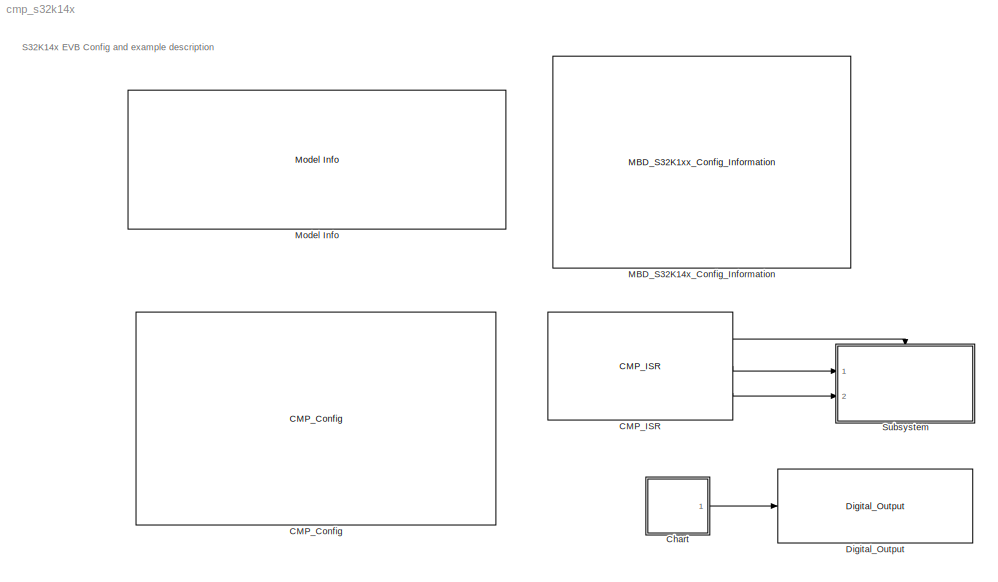
MODEL cmp_s32k14x
KIND model
CONFIG InitFcn = mbd_s32k_consistency_checks(bdroot(gcs));
BLOCK [Reference] CMP_Config  REF=mbd_s32k1xx_ec_toolbox/Motor Control Blocks/CMP Blocks/CMP_Config
  Ports = []
  Priority = 1
  SID = 2
  SourceBlock = mbd_s32k1xx_ec_toolbox/Motor Control Blocks/CMP Blocks/CMP_Config
  SourceType = cmp_s32k_config
  chn0 = off
  chn1 = off
  chn2 = off
  chn3 = off
  chn4 = off
  chn5 = off
  chn6 = off
  chn7 = off
  cos = Set CMPO to equal COUTA (unfiltered)
  dacen = on
  filter_cnt = Disabled
  fpr = 0
  fxmp = The Plus port is fixed
  fxmxch = Channel 0
  hystctr = level 0
  innsel = IN0, from the 8-bit DAC output
  inpsel = IN1, from the analog 8-1 mux
  instance = 0
  invt = off
  mcuTargetUpdate = on
  mode = Continuous
  msel = PTE8: [CMP0_IN3 | Comparator Input Signal]
  nsam = as soon as the active channel is scanned
  offset = level 0
  ope = PTE3: [CMP0_OUT | Comparator Output trigger]
  pmode = Low Speed
  psel = PTD7: [CMP0_IN6 | Comparator Input Signal]
  rre = off
  vosel = 128
  vrsel = Vin1
BLOCK [Reference] CMP_ISR  REF=mbd_s32k1xx_ec_toolbox/Motor Control Blocks/CMP Blocks/CMP_ISR
  Ports = [0, 3]
  SID = 4
  SourceBlock = mbd_s32k1xx_ec_toolbox/Motor Control Blocks/CMP Blocks/CMP_ISR
  SourceType = cmp_s32k_isr
  ief = off
  ier = on
  instance = 0
  prio = 1
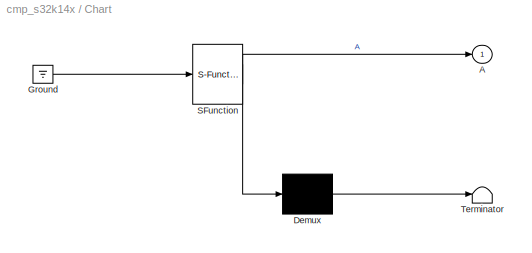
BLOCK [SubSystem] Chart
  ErrorFcn = Stateflow.Translate.translate
  PermitHierarchicalResolution = ExplicitOnly
  Ports = [0, 1]
  RequestExecContextInheritance = off
  SFBlockType = Chart
  SID = 34
  TreatAsAtomicUnit = on
  Variant = off
BLOCK [Outport] Chart/ A
  IconDisplay = Port number
  SID = 34::6
BLOCK [Demux] Chart/ Demux 
  Outputs = 1
  Ports = [1, 1]
  SID = 34::36
BLOCK [Ground] Chart/ Ground 
  SID = 34::38
BLOCK [S-Function] Chart/ SFunction 
  EnableBusSupport = on
  FunctionName = sf_sfun
  PortCounts = [1 2]
  Ports = [1, 2]
  SFcnIsStateOwnerBlock = off
  SFunctionDeploymentMode = off
  SID = 34::35
  Tag = Stateflow S-Function cmp_s32k14x 1
BLOCK [Terminator] Chart/ Terminator 
  SID = 34::37
BLOCK [Reference] Digital_Output  REF=mbd_s32k1xx_ec_toolbox/GPIO Blocks/Digital_Output
  Ports = [1]
  SID = 28
  SourceBlock = mbd_s32k1xx_ec_toolbox/GPIO Blocks/Digital_Output
  SourceType = gpio_s32k_output
  drive_strength = Low
  gpio_pin = PTC15: [PTC15 | Port C I/O]
  init_val = Low
BLOCK [Reference] MBD_S32K14x_Config_Information  REF=mbd_s32k1xx_ec_toolbox/MBD_S32K1xx_Config_Information
  ADC_PcrCheckEnDis = on
  AMMCLIB_PcrCheckEnDis = on
  CMP_PcrCheckEnDis = on
  CSEc_PcrCheckEnDis = on
  ConfigParams_PcrCheckEnDis = on
  FM_PcrCheckEnDis = on
  FTM_Dual_Edge_Inputs_PcrCheckEnDis = on
  FTM_Hall_Sensor_Inputs_PcrCheckEnDis = on
  FTM_Input_Edge_Inputs_PcrCheckEnDis = on
  FTM_PWM_PcrCheckEnDis = on
  FTM_Quadrature_Inputs_PcrCheckEnDis = on
  FlexCAN_PcrCheckEnDis = on
  FlexIO_PcrCheckEnDis = on
  GPIO_InputPcrCheckEnDis = on
  GPIO_OutputPcrCheckEnDis = on
  LIN_PcrCheckEnDis = on
  LPI2C_PcrCheckEnDis = on
  LPSPI_PcrCheckEnDis = on
  LPTMR_PcrCheckEnDis = on
  LPUART_PcrCheckEnDis = on
  ModelRef_PcrCheckEnDis = on
  PDB0_PcrCheckEnDis = on
  PIT_PcrCheckEnDis = on
  Ports = []
  Profile_PcrCheckEnDis = on
  RTC_PcrCheckEnDis = on
  SBC_PcrCheckEnDis = on
  SID = 3
  SourceBlock = mbd_s32k1xx_ec_toolbox/MBD_S32K1xx_Config_Information
  SourceType = MBDTBX_EC_S32K
  WDOG_PcrCheckEnDis = on
  config_params = []
  disp_str = Target : S32K144-48KB_SRAM\nPackage : 100-pin\nSystem clock : 80 MHz\nXTAL clock : External 8 MHz\nCompiler : IAR\nTarget Type : FLASH\nDownload Code after build : off\nStep Tick Interrupt Priority : 15
  ds_import_enable = on
  eDMA_PcrCheckEnDis = on
  gcc_target_assemble_opts = -mcpu=cortex-m4 -mthumb -mfloat-abi=hard -mfpu=fpv4-sp-d16 -g
  gcc_target_compile_opts = -mcpu=cortex-m4 -mthumb -mfloat-abi=hard -mfpu=fpv4-sp-d16 -O1 -g -gstrict-dwarf
  gcc_target_default_lcf = on
  gcc_target_link_opts = -mcpu=cortex-m4 -mthumb -mfloat-abi=hard -mfpu=fpv4-sp-d16
  gcc_target_user_lcf = S32K144_64_flash.ld
  ghs_target_assemble_opts = -cpu=cortexm4f -fpu=vfpv4_d16
  ghs_target_compile_opts = -cpu=cortexm4f -thumb -DARM_MATH_CM4 -fpu=vfpv4_d16 -fsingle -Ogeneral -Wundef -Wimplicit-int -Wshadow -Wtrigraphs --no_commons --gnu_asm -gnu99 -gdwarf-2 -G
  ghs_target_default_lcf = off
  ghs_target_link_opts = -cpu=cortexm4f -thumb -fpu=vfpv4_d16
  ghs_target_user_lcf = S32K144_64_flash.ld
  iar_target_assemble_opts = --cpu Cortex-M4F --thumb --fpu VFPv4_sp
  iar_target_compile_opts = --cpu=Cortex-M4F --thumb --fpu=VFPv4_sp -Ol -e --debug --dlib_config normal
  iar_target_default_lcf = off
  iar_target_link_opts = --no_exceptions --vfe --inline
  iar_target_user_lcf = S32K144_64_flash.icf
  mbdt_ver = 0
  mcu_steptick_prio = 15
  mcu_steptick_timer = LPIT Channel 0
  mcu_system_clock_freq = 80
  mcu_target_name = S32K144
  mcu_target_package = 100-LQFP
  mcu_target_sram_size = 64KB
  mcu_xtal_freq = External 8
  pil_download_enable = off
  pil_download_rate = 57600
  pil_opensda_drive = Custom
  pil_opensda_drive_custom = D
  pil_uart_instance = 0
  pil_uart_rx = PTA2: [LPUART0_RX | Receive]
  pil_uart_tx = PTA3: [LPUART0_TX | Transmit]
  rbl_com_port = Custom
  rbl_com_port_custom = COM1
  rbl_download_enable = on
  rbl_download_interface = OpenSDA
  rbl_restart_request = off
  rbl_start_delay = 5000000
  target_compiler = GCC
  target_memory = FLASH
BLOCK [Reference] Model Info  REF=simulink/Model-Wide\nUtilities/Model Info
  DisplayStringWithTags = Model Name: %<ModelName>\n\nDescription: %<Description>
  Frame = off
  HorizontalTextAlignment = Left
  LeftAlignmentValue = 0.02
  MaskDisplayString = Model Name: cmp_s32k14x\\n\\nDescription: This example shows how to use the CMP module to trigger a GPIO\\n\\nHW prerequisite:\\n- S32K144EVB;\\n- connect PTD7(J5.16) - PTC15(J5.20)\\n\\nValidation:\\n- Blue LED should blink\\n
  Ports = []
  SID = 32
  SourceBlock = simulink/Model-Wide\nUtilities/Model Info
  SourceProductBaseCode = SL
  SourceProductName = Simulink
  SourceType = CMBlock
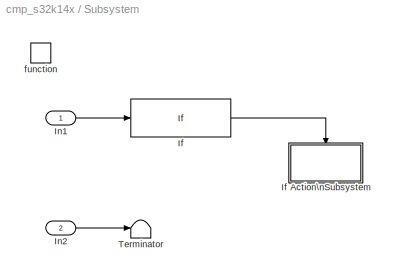
BLOCK [SubSystem] Subsystem
  Ports = [2, 0, 0, 1]
  RTWSystemCode = Nonreusable function
  RequestExecContextInheritance = off
  SID = 7
  TreatAsAtomicUnit = on
  Variant = off
BLOCK [If] Subsystem/If
  IfExpression = u1 == 1
  Ports = [1, 1]
  SID = 15
  ShowElse = off
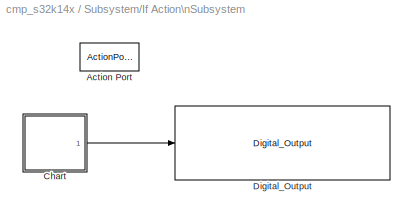
BLOCK [SubSystem] Subsystem/If Action\nSubsystem
  Ports = [0, 0, 0, 0, 0, 0, 0, 1]
  RequestExecContextInheritance = off
  SID = 16
  TreatAsAtomicUnit = on
  Variant = off
BLOCK [ActionPort] Subsystem/If Action\nSubsystem/Action Port
  ActionType = then
  SID = 18
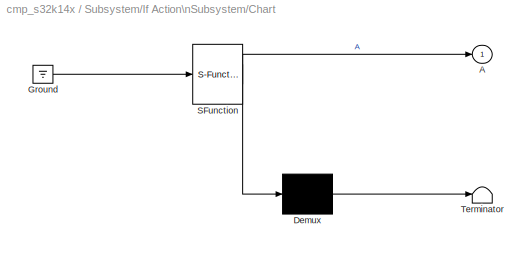
BLOCK [SubSystem] Subsystem/If Action\nSubsystem/Chart
  ErrorFcn = Stateflow.Translate.translate
  PermitHierarchicalResolution = ExplicitOnly
  Ports = [0, 1]
  RequestExecContextInheritance = off
  SFBlockType = Chart
  SID = 35
  TreatAsAtomicUnit = on
  Variant = off
BLOCK [Outport] Subsystem/If Action\nSubsystem/Chart/ A
  IconDisplay = Port number
  SID = 35::6
BLOCK [Demux] Subsystem/If Action\nSubsystem/Chart/ Demux 
  Outputs = 1
  Ports = [1, 1]
  SID = 35::36
BLOCK [Ground] Subsystem/If Action\nSubsystem/Chart/ Ground 
  SID = 35::38
BLOCK [S-Function] Subsystem/If Action\nSubsystem/Chart/ SFunction 
  EnableBusSupport = on
  FunctionName = sf_sfun
  PortCounts = [1 2]
  Ports = [1, 2]
  SFcnIsStateOwnerBlock = off
  SFunctionDeploymentMode = off
  SID = 35::35
  Tag = Stateflow S-Function cmp_s32k14x 2
BLOCK [Terminator] Subsystem/If Action\nSubsystem/Chart/ Terminator 
  SID = 35::37
BLOCK [Reference] Subsystem/If Action\nSubsystem/Digital_Output  REF=mbd_s32k1xx_ec_toolbox/GPIO Blocks/Digital_Output
  Ports = [1]
  SID = 11
  SourceBlock = mbd_s32k1xx_ec_toolbox/GPIO Blocks/Digital_Output
  SourceType = gpio_s32k_output
  drive_strength = Low
  gpio_pin = PTD0: [PTD0 | Port D I/O]
  init_val = Low
BLOCK [Inport] Subsystem/In1
  IconDisplay = Port number
  SID = 12
BLOCK [Inport] Subsystem/In2
  IconDisplay = Port number
  Port = 2
  SID = 14
BLOCK [Terminator] Subsystem/Terminator
  SID = 29
BLOCK [TriggerPort] Subsystem/function
  Ports = []
  SID = 8
  StatesWhenEnabling = held
  TriggerType = function-call
  VariantControl = Variant
ANNOTATION (root): S32K14x EVB Config and example description
LINE CMP_ISR:1 -> Subsystem:trigger
LINE CMP_ISR:2 -> Subsystem:1
LINE CMP_ISR:3 -> Subsystem:2
LINE Chart/ Demux :1 -> Chart/ Terminator :1
LINE Chart/ Ground :1 -> Chart/ SFunction :1
LINE Chart/ SFunction :1 -> Chart/ Demux :1
LINE Chart/ SFunction :2 -> Chart/ A:1
LINE Chart:1 -> Digital_Output:1
LINE Subsystem/If Action\nSubsystem/Chart/ Demux :1 -> Subsystem/If Action\nSubsystem/Chart/ Terminator :1
LINE Subsystem/If Action\nSubsystem/Chart/ Ground :1 -> Subsystem/If Action\nSubsystem/Chart/ SFunction :1
LINE Subsystem/If Action\nSubsystem/Chart/ SFunction :1 -> Subsystem/If Action\nSubsystem/Chart/ Demux :1
LINE Subsystem/If Action\nSubsystem/Chart/ SFunction :2 -> Subsystem/If Action\nSubsystem/Chart/ A:1
LINE Subsystem/If Action\nSubsystem/Chart:1 -> Subsystem/If Action\nSubsystem/Digital_Output:1
LINE Subsystem/If:1 -> Subsystem/If Action\nSubsystem:ifaction
LINE Subsystem/In1:1 -> Subsystem/If:1
LINE Subsystem/In2:1 -> Subsystem/Terminator:1
CHART Chart states=2 transitions=3
  STATE_LABEL 'A'
  STATE_LABEL 'A1'
CHART Subsystem/If Action\nSubsystem/Chart states=2 transitions=3
  STATE_LABEL 'A'
  STATE_LABEL 'A1'
